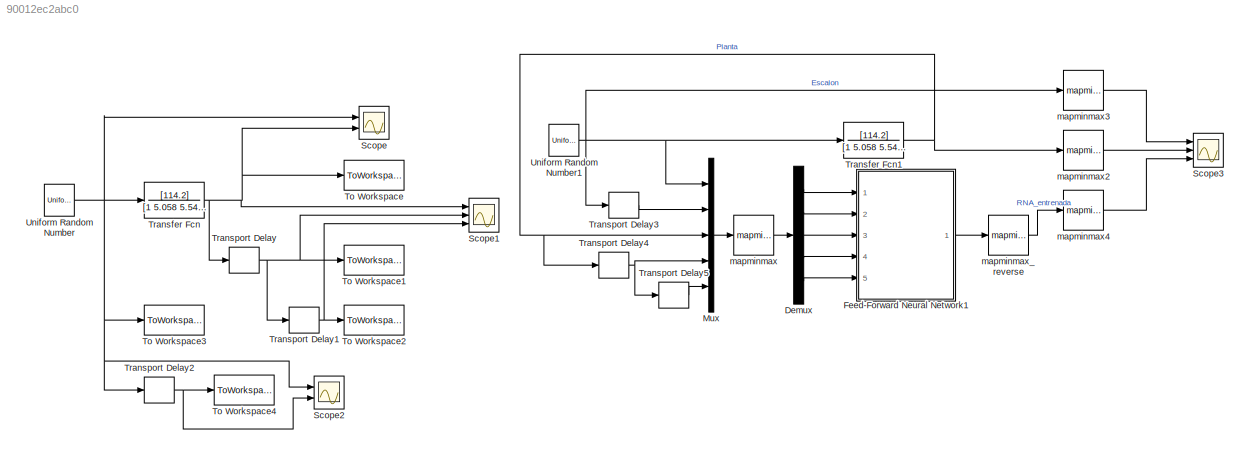
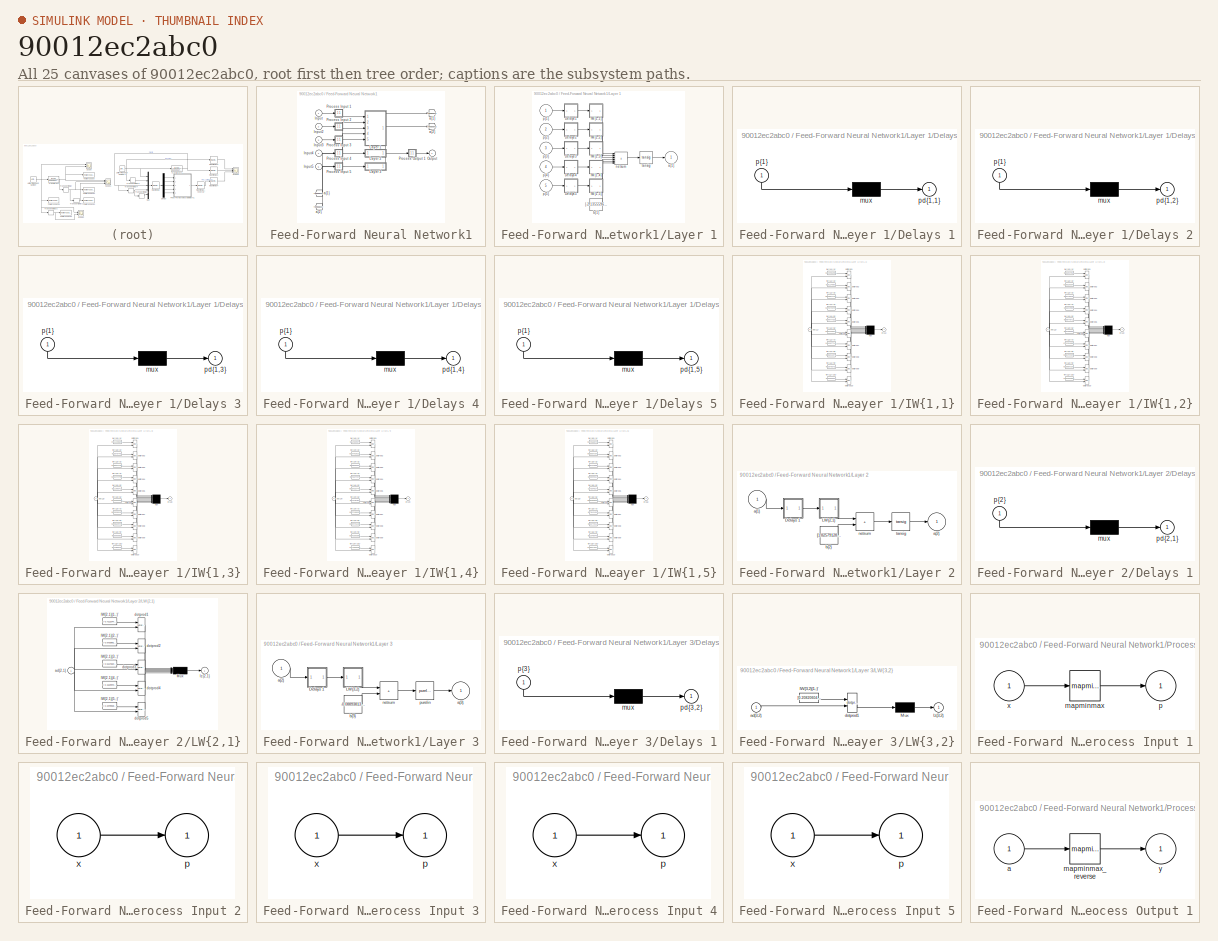
[diagram: thumbnail index - all 25 canvases of the model, root first then tree order]
MODEL slx_90012ec2abc0
KIND model
CONFIG AbsTol = auto
CONFIG EnableMultiTasking = off
CONFIG FixedStep = 0.1
CONFIG MaxStep = auto
CONFIG MinStep = auto
CONFIG RelTol = 1e-3
CONFIG SampleTimeConstraint = Unconstrained
CONFIG Solver = FixedStepAuto
CONFIG SolverName = FixedStepAuto
CONFIG StartTime = 0.0
CONFIG StopTime = 1500
BLOCK [Demux] Demux
  Outputs = 5
  Ports = [1, 5]
BLOCK [SubSystem] Feed-Forward Neural Network1
  Ports = [5, 1]
  RequestExecContextInheritance = off
BLOCK [From] Feed-Forward Neural Network1/ a{1} 
  GotoTag = feedback1
BLOCK [From] Feed-Forward Neural Network1/ a{2} 
  GotoTag = feedback2
BLOCK [Inport] Feed-Forward Neural Network1/Input
  PortDimensions = 1
BLOCK [Inport] Feed-Forward Neural Network1/Input2
  Port = 2
  PortDimensions = 1
BLOCK [Inport] Feed-Forward Neural Network1/Input3
  Port = 3
  PortDimensions = 1
BLOCK [Inport] Feed-Forward Neural Network1/Input4
  Port = 4
  PortDimensions = 1
BLOCK [Inport] Feed-Forward Neural Network1/Input5
  Port = 5
  PortDimensions = 1
BLOCK [SubSystem] Feed-Forward Neural Network1/Layer 1
  Ports = [5, 1]
  RequestExecContextInheritance = off
BLOCK [SubSystem] Feed-Forward Neural Network1/Layer 1/Delays 1
  Ports = [1, 1]
  RequestExecContextInheritance = off
BLOCK [Mux] Feed-Forward Neural Network1/Layer 1/Delays 1/mux
  Inputs = 1
  Ports = [1, 1]
BLOCK [Outport] Feed-Forward Neural Network1/Layer 1/Delays 1/pd{1,1}
BLOCK [Inport] Feed-Forward Neural Network1/Layer 1/Delays 1/p{1}
  NameLocation = left
  PortDimensions = 1
BLOCK [SubSystem] Feed-Forward Neural Network1/Layer 1/Delays 2
  Ports = [1, 1]
  RequestExecContextInheritance = off
BLOCK [Mux] Feed-Forward Neural Network1/Layer 1/Delays 2/mux
  Inputs = 1
  Ports = [1, 1]
BLOCK [Outport] Feed-Forward Neural Network1/Layer 1/Delays 2/pd{1,2}
BLOCK [Inport] Feed-Forward Neural Network1/Layer 1/Delays 2/p{1}
  NameLocation = left
  PortDimensions = 1
BLOCK [SubSystem] Feed-Forward Neural Network1/Layer 1/Delays 3
  Ports = [1, 1]
  RequestExecContextInheritance = off
BLOCK [Mux] Feed-Forward Neural Network1/Layer 1/Delays 3/mux
  Inputs = 1
  Ports = [1, 1]
BLOCK [Outport] Feed-Forward Neural Network1/Layer 1/Delays 3/pd{1,3}
BLOCK [Inport] Feed-Forward Neural Network1/Layer 1/Delays 3/p{1}
  NameLocation = left
  PortDimensions = 1
BLOCK [SubSystem] Feed-Forward Neural Network1/Layer 1/Delays 4
  Ports = [1, 1]
  RequestExecContextInheritance = off
BLOCK [Mux] Feed-Forward Neural Network1/Layer 1/Delays 4/mux
  Inputs = 1
  Ports = [1, 1]
BLOCK [Outport] Feed-Forward Neural Network1/Layer 1/Delays 4/pd{1,4}
BLOCK [Inport] Feed-Forward Neural Network1/Layer 1/Delays 4/p{1}
  NameLocation = left
  PortDimensions = 1
BLOCK [SubSystem] Feed-Forward Neural Network1/Layer 1/Delays 5
  Ports = [1, 1]
  RequestExecContextInheritance = off
BLOCK [Mux] Feed-Forward Neural Network1/Layer 1/Delays 5/mux
  Inputs = 1
  Ports = [1, 1]
BLOCK [Outport] Feed-Forward Neural Network1/Layer 1/Delays 5/pd{1,5}
BLOCK [Inport] Feed-Forward Neural Network1/Layer 1/Delays 5/p{1}
  NameLocation = left
  PortDimensions = 1
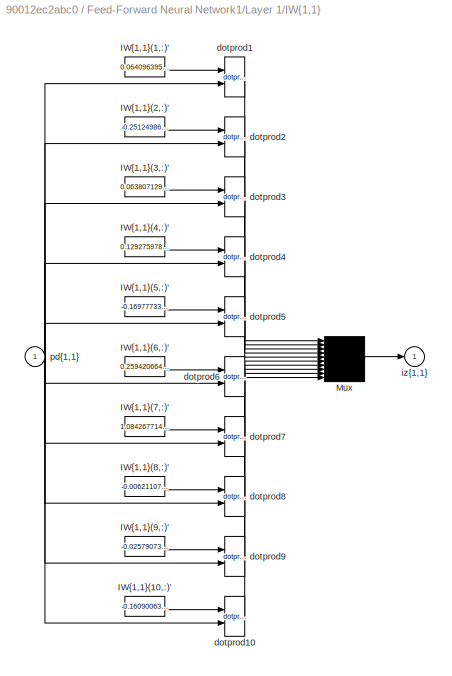
BLOCK [SubSystem] Feed-Forward Neural Network1/Layer 1/IW{1,1}
  Ports = [1, 1]
  RequestExecContextInheritance = off
BLOCK [Constant] Feed-Forward Neural Network1/Layer 1/IW{1,1}/IW{1,1}(1,:)'
  Value = 0.064096395795340266321460376275354065001010894775390625
BLOCK [Constant] Feed-Forward Neural Network1/Layer 1/IW{1,1}/IW{1,1}(10,:)'
  Value = -0.1609006380400649083295405716853565536439418792724609375
BLOCK [Constant] Feed-Forward Neural Network1/Layer 1/IW{1,1}/IW{1,1}(2,:)'
  Value = -0.25124986464909071504081339298863895237445831298828125
BLOCK [Constant] Feed-Forward Neural Network1/Layer 1/IW{1,1}/IW{1,1}(3,:)'
  Value = 0.0638071292988555971437136804524925537407398223876953125
BLOCK [Constant] Feed-Forward Neural Network1/Layer 1/IW{1,1}/IW{1,1}(4,:)'
  Value = 0.1292759788411202148683543100560200400650501251220703125
BLOCK [Constant] Feed-Forward Neural Network1/Layer 1/IW{1,1}/IW{1,1}(5,:)'
  Value = -0.16977733067755285123467956509557552635669708251953125
BLOCK [Constant] Feed-Forward Neural Network1/Layer 1/IW{1,1}/IW{1,1}(6,:)'
  Value = 0.259420664790711963387792593493941240012645721435546875
BLOCK [Constant] Feed-Forward Neural Network1/Layer 1/IW{1,1}/IW{1,1}(7,:)'
  Value = 1.084267714173177576952866729698143899440765380859375
BLOCK [Constant] Feed-Forward Neural Network1/Layer 1/IW{1,1}/IW{1,1}(8,:)'
  Value = -0.00621107591723416181672678959557742928154766559600830078125
BLOCK [Constant] Feed-Forward Neural Network1/Layer 1/IW{1,1}/IW{1,1}(9,:)'
  Value = -0.025790734084803527970120029522149707190692424774169921875
BLOCK [Mux] Feed-Forward Neural Network1/Layer 1/IW{1,1}/Mux
  Inputs = 10
  Ports = [10, 1]
BLOCK [Reference] Feed-Forward Neural Network1/Layer 1/IW{1,1}/dotprod1  REF=neural/Weight Functions/dotprod
  Ports = [2, 1]
  SourceBlock = neural/Weight Functions/dotprod
  SourceProductBaseCode = NN
  SourceType = DOTPROD
BLOCK [Reference] Feed-Forward Neural Network1/Layer 1/IW{1,1}/dotprod10  REF=neural/Weight Functions/dotprod
  Ports = [2, 1]
  SourceBlock = neural/Weight Functions/dotprod
  SourceProductBaseCode = NN
  SourceType = DOTPROD
BLOCK [Reference] Feed-Forward Neural Network1/Layer 1/IW{1,1}/dotprod2  REF=neural/Weight Functions/dotprod
  Ports = [2, 1]
  SourceBlock = neural/Weight Functions/dotprod
  SourceProductBaseCode = NN
  SourceType = DOTPROD
BLOCK [Reference] Feed-Forward Neural Network1/Layer 1/IW{1,1}/dotprod3  REF=neural/Weight Functions/dotprod
  Ports = [2, 1]
  SourceBlock = neural/Weight Functions/dotprod
  SourceProductBaseCode = NN
  SourceType = DOTPROD
BLOCK [Reference] Feed-Forward Neural Network1/Layer 1/IW{1,1}/dotprod4  REF=neural/Weight Functions/dotprod
  Ports = [2, 1]
  SourceBlock = neural/Weight Functions/dotprod
  SourceProductBaseCode = NN
  SourceType = DOTPROD
BLOCK [Reference] Feed-Forward Neural Network1/Layer 1/IW{1,1}/dotprod5  REF=neural/Weight Functions/dotprod
  Ports = [2, 1]
  SourceBlock = neural/Weight Functions/dotprod
  SourceProductBaseCode = NN
  SourceType = DOTPROD
BLOCK [Reference] Feed-Forward Neural Network1/Layer 1/IW{1,1}/dotprod6  REF=neural/Weight Functions/dotprod
  Ports = [2, 1]
  SourceBlock = neural/Weight Functions/dotprod
  SourceProductBaseCode = NN
  SourceType = DOTPROD
BLOCK [Reference] Feed-Forward Neural Network1/Layer 1/IW{1,1}/dotprod7  REF=neural/Weight Functions/dotprod
  Ports = [2, 1]
  SourceBlock = neural/Weight Functions/dotprod
  SourceProductBaseCode = NN
  SourceType = DOTPROD
BLOCK [Reference] Feed-Forward Neural Network1/Layer 1/IW{1,1}/dotprod8  REF=neural/Weight Functions/dotprod
  Ports = [2, 1]
  SourceBlock = neural/Weight Functions/dotprod
  SourceProductBaseCode = NN
  SourceType = DOTPROD
BLOCK [Reference] Feed-Forward Neural Network1/Layer 1/IW{1,1}/dotprod9  REF=neural/Weight Functions/dotprod
  Ports = [2, 1]
  SourceBlock = neural/Weight Functions/dotprod
  SourceProductBaseCode = NN
  SourceType = DOTPROD
BLOCK [Outport] Feed-Forward Neural Network1/Layer 1/IW{1,1}/iz{1,1}
BLOCK [Inport] Feed-Forward Neural Network1/Layer 1/IW{1,1}/pd{1,1}
  PortDimensions = 1
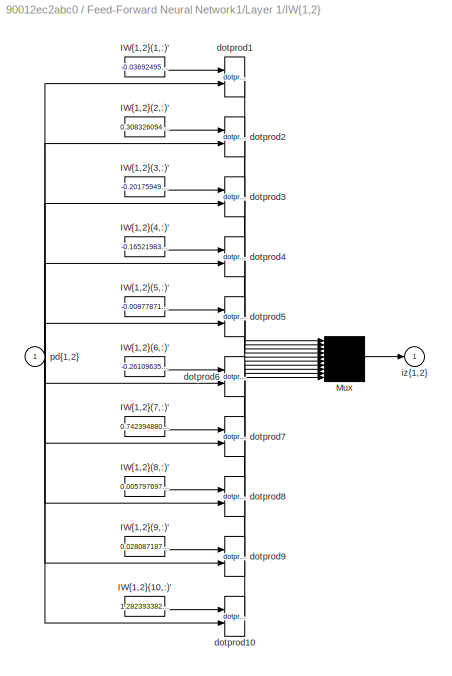
BLOCK [SubSystem] Feed-Forward Neural Network1/Layer 1/IW{1,2}
  Ports = [1, 1]
  RequestExecContextInheritance = off
BLOCK [Constant] Feed-Forward Neural Network1/Layer 1/IW{1,2}/IW{1,2}(1,:)'
  Value = -0.036924955750158645895186992902381462045013904571533203125
BLOCK [Constant] Feed-Forward Neural Network1/Layer 1/IW{1,2}/IW{1,2}(10,:)'
  Value = 1.2823933829601126266339861103915609419345855712890625
BLOCK [Constant] Feed-Forward Neural Network1/Layer 1/IW{1,2}/IW{1,2}(2,:)'
  Value = 0.308326094445494247597849835074157454073429107666015625
BLOCK [Constant] Feed-Forward Neural Network1/Layer 1/IW{1,2}/IW{1,2}(3,:)'
  Value = -0.2017594985392225093168150351630174554884433746337890625
BLOCK [Constant] Feed-Forward Neural Network1/Layer 1/IW{1,2}/IW{1,2}(4,:)'
  Value = -0.165219833233155311003059750873944722115993499755859375
BLOCK [Constant] Feed-Forward Neural Network1/Layer 1/IW{1,2}/IW{1,2}(5,:)'
  Value = -0.00877871315664167407855078550937832915224134922027587890625
BLOCK [Constant] Feed-Forward Neural Network1/Layer 1/IW{1,2}/IW{1,2}(6,:)'
  Value = -0.261096352376032958542140249846852384507656097412109375
BLOCK [Constant] Feed-Forward Neural Network1/Layer 1/IW{1,2}/IW{1,2}(7,:)'
  Value = 0.74239488081224169757632580513018183410167694091796875
BLOCK [Constant] Feed-Forward Neural Network1/Layer 1/IW{1,2}/IW{1,2}(8,:)'
  Value = 0.0057976977647169157525919302997863269411027431488037109375
BLOCK [Constant] Feed-Forward Neural Network1/Layer 1/IW{1,2}/IW{1,2}(9,:)'
  Value = 0.0280871871044160621722074466788399149663746356964111328125
BLOCK [Mux] Feed-Forward Neural Network1/Layer 1/IW{1,2}/Mux
  Inputs = 10
  Ports = [10, 1]
BLOCK [Reference] Feed-Forward Neural Network1/Layer 1/IW{1,2}/dotprod1  REF=neural/Weight Functions/dotprod
  Ports = [2, 1]
  SourceBlock = neural/Weight Functions/dotprod
  SourceProductBaseCode = NN
  SourceType = DOTPROD
BLOCK [Reference] Feed-Forward Neural Network1/Layer 1/IW{1,2}/dotprod10  REF=neural/Weight Functions/dotprod
  Ports = [2, 1]
  SourceBlock = neural/Weight Functions/dotprod
  SourceProductBaseCode = NN
  SourceType = DOTPROD
BLOCK [Reference] Feed-Forward Neural Network1/Layer 1/IW{1,2}/dotprod2  REF=neural/Weight Functions/dotprod
  Ports = [2, 1]
  SourceBlock = neural/Weight Functions/dotprod
  SourceProductBaseCode = NN
  SourceType = DOTPROD
BLOCK [Reference] Feed-Forward Neural Network1/Layer 1/IW{1,2}/dotprod3  REF=neural/Weight Functions/dotprod
  Ports = [2, 1]
  SourceBlock = neural/Weight Functions/dotprod
  SourceProductBaseCode = NN
  SourceType = DOTPROD
BLOCK [Reference] Feed-Forward Neural Network1/Layer 1/IW{1,2}/dotprod4  REF=neural/Weight Functions/dotprod
  Ports = [2, 1]
  SourceBlock = neural/Weight Functions/dotprod
  SourceProductBaseCode = NN
  SourceType = DOTPROD
BLOCK [Reference] Feed-Forward Neural Network1/Layer 1/IW{1,2}/dotprod5  REF=neural/Weight Functions/dotprod
  Ports = [2, 1]
  SourceBlock = neural/Weight Functions/dotprod
  SourceProductBaseCode = NN
  SourceType = DOTPROD
BLOCK [Reference] Feed-Forward Neural Network1/Layer 1/IW{1,2}/dotprod6  REF=neural/Weight Functions/dotprod
  Ports = [2, 1]
  SourceBlock = neural/Weight Functions/dotprod
  SourceProductBaseCode = NN
  SourceType = DOTPROD
BLOCK [Reference] Feed-Forward Neural Network1/Layer 1/IW{1,2}/dotprod7  REF=neural/Weight Functions/dotprod
  Ports = [2, 1]
  SourceBlock = neural/Weight Functions/dotprod
  SourceProductBaseCode = NN
  SourceType = DOTPROD
BLOCK [Reference] Feed-Forward Neural Network1/Layer 1/IW{1,2}/dotprod8  REF=neural/Weight Functions/dotprod
  Ports = [2, 1]
  SourceBlock = neural/Weight Functions/dotprod
  SourceProductBaseCode = NN
  SourceType = DOTPROD
BLOCK [Reference] Feed-Forward Neural Network1/Layer 1/IW{1,2}/dotprod9  REF=neural/Weight Functions/dotprod
  Ports = [2, 1]
  SourceBlock = neural/Weight Functions/dotprod
  SourceProductBaseCode = NN
  SourceType = DOTPROD
BLOCK [Outport] Feed-Forward Neural Network1/Layer 1/IW{1,2}/iz{1,2}
BLOCK [Inport] Feed-Forward Neural Network1/Layer 1/IW{1,2}/pd{1,2}
  PortDimensions = 1
BLOCK [SubSystem] Feed-Forward Neural Network1/Layer 1/IW{1,3}
  Ports = [1, 1]
  RequestExecContextInheritance = off
BLOCK [Constant] Feed-Forward Neural Network1/Layer 1/IW{1,3}/IW{1,3}(1,:)'
  Value = 0.411228584993159673732776582255610264837741851806640625
BLOCK [Constant] Feed-Forward Neural Network1/Layer 1/IW{1,3}/IW{1,3}(10,:)'
  Value = -0.7448661670569032278166332616820000112056732177734375
BLOCK [Constant] Feed-Forward Neural Network1/Layer 1/IW{1,3}/IW{1,3}(2,:)'
  Value = -0.1367974946488994536508698729448951780796051025390625
BLOCK [Constant] Feed-Forward Neural Network1/Layer 1/IW{1,3}/IW{1,3}(3,:)'
  Value = 1.2868107394406138599407540823449380695819854736328125
BLOCK [Constant] Feed-Forward Neural Network1/Layer 1/IW{1,3}/IW{1,3}(4,:)'
  Value = 0.181073798188619738969151740093366242945194244384765625
BLOCK [Constant] Feed-Forward Neural Network1/Layer 1/IW{1,3}/IW{1,3}(5,:)'
  Value = -0.2119834146910756500492567511173547245562076568603515625
BLOCK [Constant] Feed-Forward Neural Network1/Layer 1/IW{1,3}/IW{1,3}(6,:)'
  Value = 0.1269993067687715804225945248617790639400482177734375
BLOCK [Constant] Feed-Forward Neural Network1/Layer 1/IW{1,3}/IW{1,3}(7,:)'
  Value = 0.94303810092428219657989529878250323235988616943359375
BLOCK [Constant] Feed-Forward Neural Network1/Layer 1/IW{1,3}/IW{1,3}(8,:)'
  Value = 0.248569972883226630866460027391440235078334808349609375
BLOCK [Constant] Feed-Forward Neural Network1/Layer 1/IW{1,3}/IW{1,3}(9,:)'
  Value = -0.50595986401725234760107241527293808758258819580078125
BLOCK [Mux] Feed-Forward Neural Network1/Layer 1/IW{1,3}/Mux
  Inputs = 10
  Ports = [10, 1]
BLOCK [Reference] Feed-Forward Neural Network1/Layer 1/IW{1,3}/dotprod1  REF=neural/Weight Functions/dotprod
  Ports = [2, 1]
  SourceBlock = neural/Weight Functions/dotprod
  SourceProductBaseCode = NN
  SourceType = DOTPROD
BLOCK [Reference] Feed-Forward Neural Network1/Layer 1/IW{1,3}/dotprod10  REF=neural/Weight Functions/dotprod
  Ports = [2, 1]
  SourceBlock = neural/Weight Functions/dotprod
  SourceProductBaseCode = NN
  SourceType = DOTPROD
BLOCK [Reference] Feed-Forward Neural Network1/Layer 1/IW{1,3}/dotprod2  REF=neural/Weight Functions/dotprod
  Ports = [2, 1]
  SourceBlock = neural/Weight Functions/dotprod
  SourceProductBaseCode = NN
  SourceType = DOTPROD
BLOCK [Reference] Feed-Forward Neural Network1/Layer 1/IW{1,3}/dotprod3  REF=neural/Weight Functions/dotprod
  Ports = [2, 1]
  SourceBlock = neural/Weight Functions/dotprod
  SourceProductBaseCode = NN
  SourceType = DOTPROD
BLOCK [Reference] Feed-Forward Neural Network1/Layer 1/IW{1,3}/dotprod4  REF=neural/Weight Functions/dotprod
  Ports = [2, 1]
  SourceBlock = neural/Weight Functions/dotprod
  SourceProductBaseCode = NN
  SourceType = DOTPROD
BLOCK [Reference] Feed-Forward Neural Network1/Layer 1/IW{1,3}/dotprod5  REF=neural/Weight Functions/dotprod
  Ports = [2, 1]
  SourceBlock = neural/Weight Functions/dotprod
  SourceProductBaseCode = NN
  SourceType = DOTPROD
BLOCK [Reference] Feed-Forward Neural Network1/Layer 1/IW{1,3}/dotprod6  REF=neural/Weight Functions/dotprod
  Ports = [2, 1]
  SourceBlock = neural/Weight Functions/dotprod
  SourceProductBaseCode = NN
  SourceType = DOTPROD
BLOCK [Reference] Feed-Forward Neural Network1/Layer 1/IW{1,3}/dotprod7  REF=neural/Weight Functions/dotprod
  Ports = [2, 1]
  SourceBlock = neural/Weight Functions/dotprod
  SourceProductBaseCode = NN
  SourceType = DOTPROD
BLOCK [Reference] Feed-Forward Neural Network1/Layer 1/IW{1,3}/dotprod8  REF=neural/Weight Functions/dotprod
  Ports = [2, 1]
  SourceBlock = neural/Weight Functions/dotprod
  SourceProductBaseCode = NN
  SourceType = DOTPROD
BLOCK [Reference] Feed-Forward Neural Network1/Layer 1/IW{1,3}/dotprod9  REF=neural/Weight Functions/dotprod
  Ports = [2, 1]
  SourceBlock = neural/Weight Functions/dotprod
  SourceProductBaseCode = NN
  SourceType = DOTPROD
BLOCK [Outport] Feed-Forward Neural Network1/Layer 1/IW{1,3}/iz{1,3}
BLOCK [Inport] Feed-Forward Neural Network1/Layer 1/IW{1,3}/pd{1,3}
  PortDimensions = 1
BLOCK [SubSystem] Feed-Forward Neural Network1/Layer 1/IW{1,4}
  Ports = [1, 1]
  RequestExecContextInheritance = off
BLOCK [Constant] Feed-Forward Neural Network1/Layer 1/IW{1,4}/IW{1,4}(1,:)'
  Value = -0.11400937557237422748102062541875056922435760498046875
BLOCK [Constant] Feed-Forward Neural Network1/Layer 1/IW{1,4}/IW{1,4}(10,:)'
  Value = 1.217583035463341456505759197170846164226531982421875
BLOCK [Constant] Feed-Forward Neural Network1/Layer 1/IW{1,4}/IW{1,4}(2,:)'
  Value = 0.93475361931527645165118656223057769238948822021484375
BLOCK [Constant] Feed-Forward Neural Network1/Layer 1/IW{1,4}/IW{1,4}(3,:)'
  Value = -0.0083909369202884963312438770799417397938668727874755859375
BLOCK [Constant] Feed-Forward Neural Network1/Layer 1/IW{1,4}/IW{1,4}(4,:)'
  Value = -0.5466443408961836336601436414639465510845184326171875
BLOCK [Constant] Feed-Forward Neural Network1/Layer 1/IW{1,4}/IW{1,4}(5,:)'
  Value = 0.530420744119951326212003550608642399311065673828125
BLOCK [Constant] Feed-Forward Neural Network1/Layer 1/IW{1,4}/IW{1,4}(6,:)'
  Value = -0.372787820615392118117625841478002257645130157470703125
BLOCK [Constant] Feed-Forward Neural Network1/Layer 1/IW{1,4}/IW{1,4}(7,:)'
  Value = 0.9571389296425547588142990207416005432605743408203125
BLOCK [Constant] Feed-Forward Neural Network1/Layer 1/IW{1,4}/IW{1,4}(8,:)'
  Value = 0.00947613376675793782355494698776965378783643245697021484375
BLOCK [Constant] Feed-Forward Neural Network1/Layer 1/IW{1,4}/IW{1,4}(9,:)'
  Value = 0.08425508614366138127049765671472414396703243255615234375
BLOCK [Mux] Feed-Forward Neural Network1/Layer 1/IW{1,4}/Mux
  Inputs = 10
  Ports = [10, 1]
BLOCK [Reference] Feed-Forward Neural Network1/Layer 1/IW{1,4}/dotprod1  REF=neural/Weight Functions/dotprod
  Ports = [2, 1]
  SourceBlock = neural/Weight Functions/dotprod
  SourceProductBaseCode = NN
  SourceType = DOTPROD
BLOCK [Reference] Feed-Forward Neural Network1/Layer 1/IW{1,4}/dotprod10  REF=neural/Weight Functions/dotprod
  Ports = [2, 1]
  SourceBlock = neural/Weight Functions/dotprod
  SourceProductBaseCode = NN
  SourceType = DOTPROD
BLOCK [Reference] Feed-Forward Neural Network1/Layer 1/IW{1,4}/dotprod2  REF=neural/Weight Functions/dotprod
  Ports = [2, 1]
  SourceBlock = neural/Weight Functions/dotprod
  SourceProductBaseCode = NN
  SourceType = DOTPROD
BLOCK [Reference] Feed-Forward Neural Network1/Layer 1/IW{1,4}/dotprod3  REF=neural/Weight Functions/dotprod
  Ports = [2, 1]
  SourceBlock = neural/Weight Functions/dotprod
  SourceProductBaseCode = NN
  SourceType = DOTPROD
BLOCK [Reference] Feed-Forward Neural Network1/Layer 1/IW{1,4}/dotprod4  REF=neural/Weight Functions/dotprod
  Ports = [2, 1]
  SourceBlock = neural/Weight Functions/dotprod
  SourceProductBaseCode = NN
  SourceType = DOTPROD
BLOCK [Reference] Feed-Forward Neural Network1/Layer 1/IW{1,4}/dotprod5  REF=neural/Weight Functions/dotprod
  Ports = [2, 1]
  SourceBlock = neural/Weight Functions/dotprod
  SourceProductBaseCode = NN
  SourceType = DOTPROD
BLOCK [Reference] Feed-Forward Neural Network1/Layer 1/IW{1,4}/dotprod6  REF=neural/Weight Functions/dotprod
  Ports = [2, 1]
  SourceBlock = neural/Weight Functions/dotprod
  SourceProductBaseCode = NN
  SourceType = DOTPROD
BLOCK [Reference] Feed-Forward Neural Network1/Layer 1/IW{1,4}/dotprod7  REF=neural/Weight Functions/dotprod
  Ports = [2, 1]
  SourceBlock = neural/Weight Functions/dotprod
  SourceProductBaseCode = NN
  SourceType = DOTPROD
BLOCK [Reference] Feed-Forward Neural Network1/Layer 1/IW{1,4}/dotprod8  REF=neural/Weight Functions/dotprod
  Ports = [2, 1]
  SourceBlock = neural/Weight Functions/dotprod
  SourceProductBaseCode = NN
  SourceType = DOTPROD
BLOCK [Reference] Feed-Forward Neural Network1/Layer 1/IW{1,4}/dotprod9  REF=neural/Weight Functions/dotprod
  Ports = [2, 1]
  SourceBlock = neural/Weight Functions/dotprod
  SourceProductBaseCode = NN
  SourceType = DOTPROD
BLOCK [Outport] Feed-Forward Neural Network1/Layer 1/IW{1,4}/iz{1,4}
BLOCK [Inport] Feed-Forward Neural Network1/Layer 1/IW{1,4}/pd{1,4}
  PortDimensions = 1
BLOCK [SubSystem] Feed-Forward Neural Network1/Layer 1/IW{1,5}
  Ports = [1, 1]
  RequestExecContextInheritance = off
BLOCK [Constant] Feed-Forward Neural Network1/Layer 1/IW{1,5}/IW{1,5}(1,:)'
  Value = 0.372568072913042003246886224587797187268733978271484375
BLOCK [Constant] Feed-Forward Neural Network1/Layer 1/IW{1,5}/IW{1,5}(10,:)'
  Value = 0.4355148119408889240133930798037908971309661865234375
BLOCK [Constant] Feed-Forward Neural Network1/Layer 1/IW{1,5}/IW{1,5}(2,:)'
  Value = 0.60809739781374150258130839574732817709445953369140625
BLOCK [Constant] Feed-Forward Neural Network1/Layer 1/IW{1,5}/IW{1,5}(3,:)'
  Value = -0.89121598103204358043427646407508291304111480712890625
BLOCK [Constant] Feed-Forward Neural Network1/Layer 1/IW{1,5}/IW{1,5}(4,:)'
  Value = -0.238393517389238696058129107768763788044452667236328125
BLOCK [Constant] Feed-Forward Neural Network1/Layer 1/IW{1,5}/IW{1,5}(5,:)'
  Value = -1.17304927823672233699880962376482784748077392578125
BLOCK [Constant] Feed-Forward Neural Network1/Layer 1/IW{1,5}/IW{1,5}(6,:)'
  Value = 0.6869588923997056451042908520321361720561981201171875
BLOCK [Constant] Feed-Forward Neural Network1/Layer 1/IW{1,5}/IW{1,5}(7,:)'
  Value = -0.178124305396174076321358370478264987468719482421875
BLOCK [Constant] Feed-Forward Neural Network1/Layer 1/IW{1,5}/IW{1,5}(8,:)'
  Value = -0.02074921481069171014244290063288644887506961822509765625
BLOCK [Constant] Feed-Forward Neural Network1/Layer 1/IW{1,5}/IW{1,5}(9,:)'
  Value = -0.010489457289512761628547110603904002346098423004150390625
BLOCK [Mux] Feed-Forward Neural Network1/Layer 1/IW{1,5}/Mux
  Inputs = 10
  Ports = [10, 1]
BLOCK [Reference] Feed-Forward Neural Network1/Layer 1/IW{1,5}/dotprod1  REF=neural/Weight Functions/dotprod
  Ports = [2, 1]
  SourceBlock = neural/Weight Functions/dotprod
  SourceProductBaseCode = NN
  SourceType = DOTPROD
BLOCK [Reference] Feed-Forward Neural Network1/Layer 1/IW{1,5}/dotprod10  REF=neural/Weight Functions/dotprod
  Ports = [2, 1]
  SourceBlock = neural/Weight Functions/dotprod
  SourceProductBaseCode = NN
  SourceType = DOTPROD
BLOCK [Reference] Feed-Forward Neural Network1/Layer 1/IW{1,5}/dotprod2  REF=neural/Weight Functions/dotprod
  Ports = [2, 1]
  SourceBlock = neural/Weight Functions/dotprod
  SourceProductBaseCode = NN
  SourceType = DOTPROD
BLOCK [Reference] Feed-Forward Neural Network1/Layer 1/IW{1,5}/dotprod3  REF=neural/Weight Functions/dotprod
  Ports = [2, 1]
  SourceBlock = neural/Weight Functions/dotprod
  SourceProductBaseCode = NN
  SourceType = DOTPROD
BLOCK [Reference] Feed-Forward Neural Network1/Layer 1/IW{1,5}/dotprod4  REF=neural/Weight Functions/dotprod
  Ports = [2, 1]
  SourceBlock = neural/Weight Functions/dotprod
  SourceProductBaseCode = NN
  SourceType = DOTPROD
BLOCK [Reference] Feed-Forward Neural Network1/Layer 1/IW{1,5}/dotprod5  REF=neural/Weight Functions/dotprod
  Ports = [2, 1]
  SourceBlock = neural/Weight Functions/dotprod
  SourceProductBaseCode = NN
  SourceType = DOTPROD
BLOCK [Reference] Feed-Forward Neural Network1/Layer 1/IW{1,5}/dotprod6  REF=neural/Weight Functions/dotprod
  Ports = [2, 1]
  SourceBlock = neural/Weight Functions/dotprod
  SourceProductBaseCode = NN
  SourceType = DOTPROD
BLOCK [Reference] Feed-Forward Neural Network1/Layer 1/IW{1,5}/dotprod7  REF=neural/Weight Functions/dotprod
  Ports = [2, 1]
  SourceBlock = neural/Weight Functions/dotprod
  SourceProductBaseCode = NN
  SourceType = DOTPROD
BLOCK [Reference] Feed-Forward Neural Network1/Layer 1/IW{1,5}/dotprod8  REF=neural/Weight Functions/dotprod
  Ports = [2, 1]
  SourceBlock = neural/Weight Functions/dotprod
  SourceProductBaseCode = NN
  SourceType = DOTPROD
BLOCK [Reference] Feed-Forward Neural Network1/Layer 1/IW{1,5}/dotprod9  REF=neural/Weight Functions/dotprod
  Ports = [2, 1]
  SourceBlock = neural/Weight Functions/dotprod
  SourceProductBaseCode = NN
  SourceType = DOTPROD
BLOCK [Outport] Feed-Forward Neural Network1/Layer 1/IW{1,5}/iz{1,5}
BLOCK [Inport] Feed-Forward Neural Network1/Layer 1/IW{1,5}/pd{1,5}
  PortDimensions = 1
BLOCK [Outport] Feed-Forward Neural Network1/Layer 1/a{1}
  InitialOutput = [0;0;0;0;0;0;0;0;0;0]
BLOCK [Constant] Feed-Forward Neural Network1/Layer 1/b{1}
  Value = [-2.135559638640775137474747680244036018848419189453125;2.214847061055172705579252578900195658206939697265625;-1.834076135010637376154818412032909691333770751953125;-0.75094585900457477833924713195301592350006103515625;0.175997332329993094734987835181527771055698394775390625;-0.3824999854096227114297334992443211376667022705078125;0.51669158556298822038144180623930878937244415283203125;-0.482094849...<+155ch>
BLOCK [Sum] Feed-Forward Neural Network1/Layer 1/netsum
  IconShape = rectangular
  InputSameDT = on
  Inputs = 6
  OutDataTypeStr = Inherit: Same as first input
  Ports = [6, 1]
  SaturateOnIntegerOverflow = on
BLOCK [Inport] Feed-Forward Neural Network1/Layer 1/p{1}
  PortDimensions = 1
BLOCK [Inport] Feed-Forward Neural Network1/Layer 1/p{2}
  Port = 2
  PortDimensions = 1
BLOCK [Inport] Feed-Forward Neural Network1/Layer 1/p{3}
  Port = 3
  PortDimensions = 1
BLOCK [Inport] Feed-Forward Neural Network1/Layer 1/p{4}
  Port = 4
  PortDimensions = 1
BLOCK [Inport] Feed-Forward Neural Network1/Layer 1/p{5}
  Port = 5
  PortDimensions = 1
BLOCK [Reference] Feed-Forward Neural Network1/Layer 1/tansig  REF=neural/Transfer Functions/tansig
  Ports = [1, 1]
  SourceBlock = neural/Transfer Functions/tansig
  SourceProductBaseCode = NN
  SourceType = TANSIG
BLOCK [SubSystem] Feed-Forward Neural Network1/Layer 2
  Ports = [1, 1]
  RequestExecContextInheritance = off
BLOCK [SubSystem] Feed-Forward Neural Network1/Layer 2/Delays 1
  Ports = [1, 1]
  RequestExecContextInheritance = off
BLOCK [Mux] Feed-Forward Neural Network1/Layer 2/Delays 1/mux
  Inputs = 1
  Ports = [1, 1]
BLOCK [Outport] Feed-Forward Neural Network1/Layer 2/Delays 1/pd{2,1}
BLOCK [Inport] Feed-Forward Neural Network1/Layer 2/Delays 1/p{2}
  NameLocation = left
  PortDimensions = 10
BLOCK [SubSystem] Feed-Forward Neural Network1/Layer 2/LW{2,1}
  Ports = [1, 1]
  RequestExecContextInheritance = off
BLOCK [Constant] Feed-Forward Neural Network1/Layer 2/LW{2,1}/IW{2,1}(1,:)'
  Value = [-0.711104777875947835497072446742095053195953369140625;-0.387928900270149312756728932072292082011699676513671875;-0.0700277018905961778916235971337300725281238555908203125;-0.8765026639848019218703711885609664022922515869140625;0.066025130612206772706684887452865950763225555419921875;-0.01558092535127533588557025012732992763631045818328857421875;0.0227157409551376823775292734808317618444561958312...<+176ch>
BLOCK [Constant] Feed-Forward Neural Network1/Layer 2/LW{2,1}/IW{2,1}(2,:)'
  Value = [-0.67339511687684716623181202521664090454578399658203125;-0.06449982795464946627728153316638781689107418060302734375;1.0027470663727549027299801309709437191486358642578125;-0.04626675892220576125080100382547243498265743255615234375;0.0788959041768354796264617334600188769400119781494140625;-0.197072654713995820685568105545826256275177001953125;-0.000134098675654156676388673030686504716868512332439...<+186ch>
BLOCK [Constant] Feed-Forward Neural Network1/Layer 2/LW{2,1}/IW{2,1}(3,:)'
  Value = [-0.5117520519008225132751022101729176938533782958984375;0.445944284190483930530035650008358061313629150390625;-0.0757763527559609240125126916609588079154491424560546875;0.11818094428103893822612491248946753330528736114501953125;0.2152522049444194618406100971697014756500720977783203125;-0.4120429165148544736752000972046516835689544677734375;1.4335018832932045930038562897568255039004725404083728790...<+183ch>
BLOCK [Constant] Feed-Forward Neural Network1/Layer 2/LW{2,1}/IW{2,1}(4,:)'
  Value = [-0.15199702774224732593211228959262371063232421875;0.06726743170470710075914411163466866128146648406982421875;-0.431776436855269618586561364281806163489818572998046875;0.0704565546151738331115410574057023040950298309326171875;-0.01371236710107421631621438251613653847016394138336181640625;0.0247673069064754634849290226839002571068704128265380859375;7.47925436963901808318580521905971636442700400948...<+193ch>
BLOCK [Constant] Feed-Forward Neural Network1/Layer 2/LW{2,1}/IW{2,1}(5,:)'
  Value = [-0.20499284301960474241610654644318856298923492431640625;-0.60403444674460693430972924033994786441326141357421875;-0.75998356360859842251187501460663042962551116943359375;0.40726808510928591555710909233312122523784637451171875;0.3531760217370283339022307700361125171184539794921875;-0.2316547425319166741974896694955532439053058624267578125;0.5274448002817051506241341485292650759220123291015625;-0....<+163ch>
BLOCK [Mux] Feed-Forward Neural Network1/Layer 2/LW{2,1}/Mux
  Inputs = 5
  Ports = [5, 1]
BLOCK [Inport] Feed-Forward Neural Network1/Layer 2/LW{2,1}/ad{2,1}
  PortDimensions = 10
BLOCK [Reference] Feed-Forward Neural Network1/Layer 2/LW{2,1}/dotprod1  REF=neural/Weight Functions/dotprod
  Ports = [2, 1]
  SourceBlock = neural/Weight Functions/dotprod
  SourceProductBaseCode = NN
  SourceType = DOTPROD
BLOCK [Reference] Feed-Forward Neural Network1/Layer 2/LW{2,1}/dotprod2  REF=neural/Weight Functions/dotprod
  Ports = [2, 1]
  SourceBlock = neural/Weight Functions/dotprod
  SourceProductBaseCode = NN
  SourceType = DOTPROD
BLOCK [Reference] Feed-Forward Neural Network1/Layer 2/LW{2,1}/dotprod3  REF=neural/Weight Functions/dotprod
  Ports = [2, 1]
  SourceBlock = neural/Weight Functions/dotprod
  SourceProductBaseCode = NN
  SourceType = DOTPROD
BLOCK [Reference] Feed-Forward Neural Network1/Layer 2/LW{2,1}/dotprod4  REF=neural/Weight Functions/dotprod
  Ports = [2, 1]
  SourceBlock = neural/Weight Functions/dotprod
  SourceProductBaseCode = NN
  SourceType = DOTPROD
BLOCK [Reference] Feed-Forward Neural Network1/Layer 2/LW{2,1}/dotprod5  REF=neural/Weight Functions/dotprod
  Ports = [2, 1]
  SourceBlock = neural/Weight Functions/dotprod
  SourceProductBaseCode = NN
  SourceType = DOTPROD
BLOCK [Outport] Feed-Forward Neural Network1/Layer 2/LW{2,1}/lz{2,1}
BLOCK [Inport] Feed-Forward Neural Network1/Layer 2/a{1} 
  PortDimensions = 10
BLOCK [Outport] Feed-Forward Neural Network1/Layer 2/a{2}
  InitialOutput = [0;0;0;0;0]
BLOCK [Constant] Feed-Forward Neural Network1/Layer 2/b{2}
  Value = [1.8257912855161888554533788919798098504543304443359375;0.628900464076945109326288729789666831493377685546875;-0.1419684344195878689109946435564779676496982574462890625;-0.40200151541256357035081236972473561763763427734375;-1.6541022330597972000987283536233007907867431640625]
BLOCK [Sum] Feed-Forward Neural Network1/Layer 2/netsum
  IconShape = rectangular
  InputSameDT = on
  Inputs = 2
  OutDataTypeStr = Inherit: Same as first input
  Ports = [2, 1]
  SaturateOnIntegerOverflow = on
BLOCK [Reference] Feed-Forward Neural Network1/Layer 2/tansig  REF=neural/Transfer Functions/tansig
  Ports = [1, 1]
  SourceBlock = neural/Transfer Functions/tansig
  SourceProductBaseCode = NN
  SourceType = TANSIG
BLOCK [SubSystem] Feed-Forward Neural Network1/Layer 3
  Ports = [1, 1]
  RequestExecContextInheritance = off
BLOCK [SubSystem] Feed-Forward Neural Network1/Layer 3/Delays 1
  Ports = [1, 1]
  RequestExecContextInheritance = off
BLOCK [Mux] Feed-Forward Neural Network1/Layer 3/Delays 1/mux
  Inputs = 1
  Ports = [1, 1]
BLOCK [Outport] Feed-Forward Neural Network1/Layer 3/Delays 1/pd{3,2}
BLOCK [Inport] Feed-Forward Neural Network1/Layer 3/Delays 1/p{3}
  NameLocation = left
  PortDimensions = 5
BLOCK [SubSystem] Feed-Forward Neural Network1/Layer 3/LW{3,2}
  Ports = [1, 1]
  RequestExecContextInheritance = off
BLOCK [Constant] Feed-Forward Neural Network1/Layer 3/LW{3,2}/IW{3,2}(1,:)'
  Value = [0.2082060466839234236235967046013684011995792388916015625;-1.1565030556056676847020980858360417187213897705078125;0.28416041044478002053352838629507459700107574462890625;-2.756200301751678072292861543246544897556304931640625;7.3722172355971166590911380911421701966901309788227081298828125e-05]
BLOCK [Mux] Feed-Forward Neural Network1/Layer 3/LW{3,2}/Mux
  Inputs = 1
  Ports = [1, 1]
BLOCK [Inport] Feed-Forward Neural Network1/Layer 3/LW{3,2}/ad{3,2}
  PortDimensions = 5
BLOCK [Reference] Feed-Forward Neural Network1/Layer 3/LW{3,2}/dotprod1  REF=neural/Weight Functions/dotprod
  Ports = [2, 1]
  SourceBlock = neural/Weight Functions/dotprod
  SourceProductBaseCode = NN
  SourceType = DOTPROD
BLOCK [Outport] Feed-Forward Neural Network1/Layer 3/LW{3,2}/lz{3,2}
BLOCK [Inport] Feed-Forward Neural Network1/Layer 3/a{2} 
  PortDimensions = 5
BLOCK [Outport] Feed-Forward Neural Network1/Layer 3/a{3}
  InitialOutput = 0
BLOCK [Constant] Feed-Forward Neural Network1/Layer 3/b{3}
  Value = -0.0889381395077633862822352739385678432881832122802734375
BLOCK [Sum] Feed-Forward Neural Network1/Layer 3/netsum
  IconShape = rectangular
  InputSameDT = on
  Inputs = 2
  OutDataTypeStr = Inherit: Same as first input
  Ports = [2, 1]
  SaturateOnIntegerOverflow = on
BLOCK [Reference] Feed-Forward Neural Network1/Layer 3/purelin  REF=neural/Transfer Functions/purelin
  Ports = [1, 1]
  SourceBlock = neural/Transfer Functions/purelin
  SourceProductBaseCode = NN
  SourceType = PURELIN
BLOCK [Outport] Feed-Forward Neural Network1/Output
  InitialOutput = 0
BLOCK [SubSystem] Feed-Forward Neural Network1/Process Input 1
  Ports = [1, 1]
  RequestExecContextInheritance = off
BLOCK [Reference] Feed-Forward Neural Network1/Process Input 1/mapminmax  REF=neural/Processing Functions/mapminmax
  Ports = [1, 1]
  SourceBlock = neural/Processing Functions/mapminmax
  SourceProductBaseCode = NN
  SourceType = MAPMINMAX Preprocess
BLOCK [Outport] Feed-Forward Neural Network1/Process Input 1/p
  PortDimensions = 1
BLOCK [Inport] Feed-Forward Neural Network1/Process Input 1/x
  PortDimensions = 1
BLOCK [SubSystem] Feed-Forward Neural Network1/Process Input 2
  Ports = [1, 1]
  RequestExecContextInheritance = off
BLOCK [Outport] Feed-Forward Neural Network1/Process Input 2/p
  PortDimensions = 1
BLOCK [Inport] Feed-Forward Neural Network1/Process Input 2/x
  PortDimensions = 1
BLOCK [SubSystem] Feed-Forward Neural Network1/Process Input 3
  Ports = [1, 1]
  RequestExecContextInheritance = off
BLOCK [Outport] Feed-Forward Neural Network1/Process Input 3/p
  PortDimensions = 1
BLOCK [Inport] Feed-Forward Neural Network1/Process Input 3/x
  PortDimensions = 1
BLOCK [SubSystem] Feed-Forward Neural Network1/Process Input 4
  Ports = [1, 1]
  RequestExecContextInheritance = off
BLOCK [Outport] Feed-Forward Neural Network1/Process Input 4/p
  PortDimensions = 1
BLOCK [Inport] Feed-Forward Neural Network1/Process Input 4/x
  PortDimensions = 1
BLOCK [SubSystem] Feed-Forward Neural Network1/Process Input 5
  Ports = [1, 1]
  RequestExecContextInheritance = off
BLOCK [Outport] Feed-Forward Neural Network1/Process Input 5/p
  PortDimensions = 1
BLOCK [Inport] Feed-Forward Neural Network1/Process Input 5/x
  PortDimensions = 1
BLOCK [SubSystem] Feed-Forward Neural Network1/Process Output 1
  Ports = [1, 1]
  RequestExecContextInheritance = off
BLOCK [Inport] Feed-Forward Neural Network1/Process Output 1/a
  PortDimensions = 1
BLOCK [Reference] Feed-Forward Neural Network1/Process Output 1/mapminmax_reverse  REF=neural/Processing Functions/mapminmax_reverse
  Ports = [1, 1]
  SourceBlock = neural/Processing Functions/mapminmax_reverse
  SourceProductBaseCode = NN
  SourceType = MAPMINMAX Reverse Process
BLOCK [Outport] Feed-Forward Neural Network1/Process Output 1/y
  PortDimensions = 1
BLOCK [Goto] Feed-Forward Neural Network1/a{1}
  GotoTag = feedback1
BLOCK [Goto] Feed-Forward Neural Network1/a{2}
  GotoTag = feedback2
BLOCK [Mux] Mux
  DisplayOption = bar
  Inputs = 5
  Ports = [5, 1]
BLOCK [Scope] Scope
  Floating = off
  NumInputPorts = 2
  Ports = [2]
  ScopeSpecificationString = Simulink.scopes.TimeScopeBlockCfg('CurrentConfiguration', extmgr.ConfigurationSet(extmgr.Configuration('Core','General UI',true),extmgr.Configuration('Core','Source UI',true),extmgr.Configuration('Sources','WiredSimulink',true),extmgr.Configuration('Visuals','Time Domain',true,'SerializedDisplays',{struct('MinYLimReal','-120.50312','MaxYLimReal','1084.52811','YLabelReal','','MinYLimMag',' 0.00000'...<+1403ch>
BLOCK [Scope] Scope1
  Floating = off
  NumInputPorts = 3
  Ports = [3]
  ScopeSpecificationString = Simulink.scopes.TimeScopeBlockCfg('CurrentConfiguration', extmgr.ConfigurationSet(extmgr.Configuration('Core','General UI',true),extmgr.Configuration('Core','Source UI',true),extmgr.Configuration('Sources','WiredSimulink',true,'DataLoggingVariableName','ScopeData1'),extmgr.Configuration('Visuals','Time Domain',true,'SerializedDisplays',{struct('MinYLimReal','-14.292','MaxYLimReal','54.63692','YLab...<+1439ch>
BLOCK [Scope] Scope2
  Floating = off
  NumInputPorts = 2
  Ports = [2]
  ScopeSpecificationString = Simulink.scopes.TimeScopeBlockCfg('CurrentConfiguration', extmgr.ConfigurationSet(extmgr.Configuration('Core','General UI',true),extmgr.Configuration('Core','Source UI',true),extmgr.Configuration('Sources','WiredSimulink',true,'DataLoggingVariableName','ScopeData2'),extmgr.Configuration('Visuals','Time Domain',true,'SerializedDisplays',{struct('MinYLimReal','-16.97631','MaxYLimReal','57.40567','YL...<+1434ch>
BLOCK [Scope] Scope3
  Floating = off
  NumInputPorts = 3
  Ports = [3]
  ScopeSpecificationString = Simulink.scopes.TimeScopeBlockCfg('CurrentConfiguration', extmgr.ConfigurationSet(extmgr.Configuration('Core','General UI',true),extmgr.Configuration('Core','Source UI',true),extmgr.Configuration('Sources','WiredSimulink',true,'DataLoggingVariableName','ScopeData1'),extmgr.Configuration('Visuals','Time Domain',true,'SerializedDisplays',{struct('MinYLimReal','-0.125','MaxYLimReal','1.125','YLabelRe...<+1477ch>
BLOCK [ToWorkspace] To Workspace
  MaxDataPoints = inf
  Ports = [1]
  SampleTime = 0.1
  VariableName = S
BLOCK [ToWorkspace] To Workspace1
  MaxDataPoints = inf
  Ports = [1]
  SampleTime = 0.1
  VariableName = S1
BLOCK [ToWorkspace] To Workspace2
  MaxDataPoints = inf
  Ports = [1]
  SampleTime = 0.1
  VariableName = S2
BLOCK [ToWorkspace] To Workspace3
  MaxDataPoints = inf
  Ports = [1]
  SampleTime = 0.1
  VariableName = U
BLOCK [ToWorkspace] To Workspace4
  MaxDataPoints = inf
  Ports = [1]
  SampleTime = 0.1
  VariableName = U1
BLOCK [TransferFcn] Transfer Fcn
  Denominator = [1 5.058 5.544]
  Numerator = [114.2]
BLOCK [TransferFcn] Transfer Fcn1
  Denominator = [1 5.058 5.544]
  Numerator = [114.2]
BLOCK [TransportDelay] Transport Delay
  DelayTime = 0.1
  Ports = [1, 1]
BLOCK [TransportDelay] Transport Delay1
  DelayTime = 0.1
  Ports = [1, 1]
BLOCK [TransportDelay] Transport Delay2
  DelayTime = 0.1
  Ports = [1, 1]
BLOCK [TransportDelay] Transport Delay3
  DelayTime = 0.1
  Ports = [1, 1]
BLOCK [TransportDelay] Transport Delay4
  DelayTime = 0.1
  Ports = [1, 1]
BLOCK [TransportDelay] Transport Delay5
  DelayTime = 0.1
  Ports = [1, 1]
BLOCK [UniformRandomNumber] Uniform Random Number
  Maximum = 50
  Minimum = 1
  SampleTime = 50
BLOCK [UniformRandomNumber] Uniform Random Number1
  Maximum = 50
  Minimum = 1
  SampleTime = 50
BLOCK [Reference] mapminmax  REF=neural/Processing Functions/mapminmax
  Ports = [1, 1]
  SourceBlock = neural/Processing Functions/mapminmax
  SourceProductBaseCode = NN
  SourceType = MAPMINMAX Preprocess
BLOCK [Reference] mapminmax2  REF=neural/Processing Functions/mapminmax
  Ports = [1, 1]
  SourceBlock = neural/Processing Functions/mapminmax
  SourceProductBaseCode = NN
  SourceType = MAPMINMAX Preprocess
BLOCK [Reference] mapminmax3  REF=neural/Processing Functions/mapminmax
  Ports = [1, 1]
  SourceBlock = neural/Processing Functions/mapminmax
  SourceProductBaseCode = NN
  SourceType = MAPMINMAX Preprocess
BLOCK [Reference] mapminmax4  REF=neural/Processing Functions/mapminmax
  Ports = [1, 1]
  SourceBlock = neural/Processing Functions/mapminmax
  SourceProductBaseCode = NN
  SourceType = MAPMINMAX Preprocess
BLOCK [Reference] mapminmax_reverse  REF=neural/Processing Functions/mapminmax_reverse
  Ports = [1, 1]
  SourceBlock = neural/Processing Functions/mapminmax_reverse
  SourceProductBaseCode = NN
  SourceType = MAPMINMAX Reverse Process
LINE Demux:1 -> Feed-Forward Neural Network1:1
LINE Demux:2 -> Feed-Forward Neural Network1:2
LINE Demux:3 -> Feed-Forward Neural Network1:3
LINE Demux:4 -> Feed-Forward Neural Network1:4
LINE Demux:5 -> Feed-Forward Neural Network1:5
LINE Feed-Forward Neural Network1/ a{1} :1 -> Feed-Forward Neural Network1/Layer 2:1
LINE Feed-Forward Neural Network1/ a{2} :1 -> Feed-Forward Neural Network1/Layer 3:1
LINE Feed-Forward Neural Network1/Input2:1 -> Feed-Forward Neural Network1/Process Input 2:1
LINE Feed-Forward Neural Network1/Input3:1 -> Feed-Forward Neural Network1/Process Input 3:1
LINE Feed-Forward Neural Network1/Input4:1 -> Feed-Forward Neural Network1/Process Input 4:1
LINE Feed-Forward Neural Network1/Input5:1 -> Feed-Forward Neural Network1/Process Input 5:1
LINE Feed-Forward Neural Network1/Input:1 -> Feed-Forward Neural Network1/Process Input 1:1
LINE Feed-Forward Neural Network1/Layer 1/Delays 1/mux:1 -> Feed-Forward Neural Network1/Layer 1/Delays 1/pd{1,1}:1
LINE Feed-Forward Neural Network1/Layer 1/Delays 1/p{1}:1 -> Feed-Forward Neural Network1/Layer 1/Delays 1/mux:1
LINE Feed-Forward Neural Network1/Layer 1/Delays 1:1 -> Feed-Forward Neural Network1/Layer 1/IW{1,1}:1
LINE Feed-Forward Neural Network1/Layer 1/Delays 2/mux:1 -> Feed-Forward Neural Network1/Layer 1/Delays 2/pd{1,2}:1
LINE Feed-Forward Neural Network1/Layer 1/Delays 2/p{1}:1 -> Feed-Forward Neural Network1/Layer 1/Delays 2/mux:1
LINE Feed-Forward Neural Network1/Layer 1/Delays 2:1 -> Feed-Forward Neural Network1/Layer 1/IW{1,2}:1
LINE Feed-Forward Neural Network1/Layer 1/Delays 3/mux:1 -> Feed-Forward Neural Network1/Layer 1/Delays 3/pd{1,3}:1
LINE Feed-Forward Neural Network1/Layer 1/Delays 3/p{1}:1 -> Feed-Forward Neural Network1/Layer 1/Delays 3/mux:1
LINE Feed-Forward Neural Network1/Layer 1/Delays 3:1 -> Feed-Forward Neural Network1/Layer 1/IW{1,3}:1
LINE Feed-Forward Neural Network1/Layer 1/Delays 4/mux:1 -> Feed-Forward Neural Network1/Layer 1/Delays 4/pd{1,4}:1
LINE Feed-Forward Neural Network1/Layer 1/Delays 4/p{1}:1 -> Feed-Forward Neural Network1/Layer 1/Delays 4/mux:1
LINE Feed-Forward Neural Network1/Layer 1/Delays 4:1 -> Feed-Forward Neural Network1/Layer 1/IW{1,4}:1
LINE Feed-Forward Neural Network1/Layer 1/Delays 5/mux:1 -> Feed-Forward Neural Network1/Layer 1/Delays 5/pd{1,5}:1
LINE Feed-Forward Neural Network1/Layer 1/Delays 5/p{1}:1 -> Feed-Forward Neural Network1/Layer 1/Delays 5/mux:1
LINE Feed-Forward Neural Network1/Layer 1/Delays 5:1 -> Feed-Forward Neural Network1/Layer 1/IW{1,5}:1
LINE Feed-Forward Neural Network1/Layer 1/IW{1,1}/IW{1,1}(1,:)':1 -> Feed-Forward Neural Network1/Layer 1/IW{1,1}/dotprod1:1
LINE Feed-Forward Neural Network1/Layer 1/IW{1,1}/IW{1,1}(10,:)':1 -> Feed-Forward Neural Network1/Layer 1/IW{1,1}/dotprod10:1
LINE Feed-Forward Neural Network1/Layer 1/IW{1,1}/IW{1,1}(2,:)':1 -> Feed-Forward Neural Network1/Layer 1/IW{1,1}/dotprod2:1
LINE Feed-Forward Neural Network1/Layer 1/IW{1,1}/IW{1,1}(3,:)':1 -> Feed-Forward Neural Network1/Layer 1/IW{1,1}/dotprod3:1
LINE Feed-Forward Neural Network1/Layer 1/IW{1,1}/IW{1,1}(4,:)':1 -> Feed-Forward Neural Network1/Layer 1/IW{1,1}/dotprod4:1
LINE Feed-Forward Neural Network1/Layer 1/IW{1,1}/IW{1,1}(5,:)':1 -> Feed-Forward Neural Network1/Layer 1/IW{1,1}/dotprod5:1
LINE Feed-Forward Neural Network1/Layer 1/IW{1,1}/IW{1,1}(6,:)':1 -> Feed-Forward Neural Network1/Layer 1/IW{1,1}/dotprod6:1
LINE Feed-Forward Neural Network1/Layer 1/IW{1,1}/IW{1,1}(7,:)':1 -> Feed-Forward Neural Network1/Layer 1/IW{1,1}/dotprod7:1
LINE Feed-Forward Neural Network1/Layer 1/IW{1,1}/IW{1,1}(8,:)':1 -> Feed-Forward Neural Network1/Layer 1/IW{1,1}/dotprod8:1
LINE Feed-Forward Neural Network1/Layer 1/IW{1,1}/IW{1,1}(9,:)':1 -> Feed-Forward Neural Network1/Layer 1/IW{1,1}/dotprod9:1
LINE Feed-Forward Neural Network1/Layer 1/IW{1,1}/Mux:1 -> Feed-Forward Neural Network1/Layer 1/IW{1,1}/iz{1,1}:1
LINE Feed-Forward Neural Network1/Layer 1/IW{1,1}/dotprod10:1 -> Feed-Forward Neural Network1/Layer 1/IW{1,1}/Mux:10
LINE Feed-Forward Neural Network1/Layer 1/IW{1,1}/dotprod1:1 -> Feed-Forward Neural Network1/Layer 1/IW{1,1}/Mux:1
LINE Feed-Forward Neural Network1/Layer 1/IW{1,1}/dotprod2:1 -> Feed-Forward Neural Network1/Layer 1/IW{1,1}/Mux:2
LINE Feed-Forward Neural Network1/Layer 1/IW{1,1}/dotprod3:1 -> Feed-Forward Neural Network1/Layer 1/IW{1,1}/Mux:3
LINE Feed-Forward Neural Network1/Layer 1/IW{1,1}/dotprod4:1 -> Feed-Forward Neural Network1/Layer 1/IW{1,1}/Mux:4
LINE Feed-Forward Neural Network1/Layer 1/IW{1,1}/dotprod5:1 -> Feed-Forward Neural Network1/Layer 1/IW{1,1}/Mux:5
LINE Feed-Forward Neural Network1/Layer 1/IW{1,1}/dotprod6:1 -> Feed-Forward Neural Network1/Layer 1/IW{1,1}/Mux:6
LINE Feed-Forward Neural Network1/Layer 1/IW{1,1}/dotprod7:1 -> Feed-Forward Neural Network1/Layer 1/IW{1,1}/Mux:7
LINE Feed-Forward Neural Network1/Layer 1/IW{1,1}/dotprod8:1 -> Feed-Forward Neural Network1/Layer 1/IW{1,1}/Mux:8
LINE Feed-Forward Neural Network1/Layer 1/IW{1,1}/dotprod9:1 -> Feed-Forward Neural Network1/Layer 1/IW{1,1}/Mux:9
NET Feed-Forward Neural Network1/Layer 1/IW{1,1}/pd{1,1}:1 -> Feed-Forward Neural Network1/Layer 1/IW{1,1}/dotprod10:2, Feed-Forward Neural Network1/Layer 1/IW{1,1}/dotprod1:2, Feed-Forward Neural Network1/Layer 1/IW{1,1}/dotprod2:2, Feed-Forward Neural Network1/Layer 1/IW{1,1}/dotprod3:2, Feed-Forward Neural Network1/Layer 1/IW{1,1}/dotprod4:2, Feed-Forward Neural Network1/Layer 1/IW{1,1}/dotprod5:2, Feed-Forward Neural Network1/Layer 1/IW{1,1}/dotprod6:2, Feed-Forward Neural Network1/Layer 1/IW{1,1}/dotprod7:2, Feed-Forward Neural Network1/Layer 1/IW{1,1}/dotprod8:2, Feed-Forward Neural Network1/Layer 1/IW{1,1}/dotprod9:2
LINE Feed-Forward Neural Network1/Layer 1/IW{1,1}:1 -> Feed-Forward Neural Network1/Layer 1/netsum:1
LINE Feed-Forward Neural Network1/Layer 1/IW{1,2}/IW{1,2}(1,:)':1 -> Feed-Forward Neural Network1/Layer 1/IW{1,2}/dotprod1:1
LINE Feed-Forward Neural Network1/Layer 1/IW{1,2}/IW{1,2}(10,:)':1 -> Feed-Forward Neural Network1/Layer 1/IW{1,2}/dotprod10:1
LINE Feed-Forward Neural Network1/Layer 1/IW{1,2}/IW{1,2}(2,:)':1 -> Feed-Forward Neural Network1/Layer 1/IW{1,2}/dotprod2:1
LINE Feed-Forward Neural Network1/Layer 1/IW{1,2}/IW{1,2}(3,:)':1 -> Feed-Forward Neural Network1/Layer 1/IW{1,2}/dotprod3:1
LINE Feed-Forward Neural Network1/Layer 1/IW{1,2}/IW{1,2}(4,:)':1 -> Feed-Forward Neural Network1/Layer 1/IW{1,2}/dotprod4:1
LINE Feed-Forward Neural Network1/Layer 1/IW{1,2}/IW{1,2}(5,:)':1 -> Feed-Forward Neural Network1/Layer 1/IW{1,2}/dotprod5:1
LINE Feed-Forward Neural Network1/Layer 1/IW{1,2}/IW{1,2}(6,:)':1 -> Feed-Forward Neural Network1/Layer 1/IW{1,2}/dotprod6:1
LINE Feed-Forward Neural Network1/Layer 1/IW{1,2}/IW{1,2}(7,:)':1 -> Feed-Forward Neural Network1/Layer 1/IW{1,2}/dotprod7:1
LINE Feed-Forward Neural Network1/Layer 1/IW{1,2}/IW{1,2}(8,:)':1 -> Feed-Forward Neural Network1/Layer 1/IW{1,2}/dotprod8:1
LINE Feed-Forward Neural Network1/Layer 1/IW{1,2}/IW{1,2}(9,:)':1 -> Feed-Forward Neural Network1/Layer 1/IW{1,2}/dotprod9:1
LINE Feed-Forward Neural Network1/Layer 1/IW{1,2}/Mux:1 -> Feed-Forward Neural Network1/Layer 1/IW{1,2}/iz{1,2}:1
LINE Feed-Forward Neural Network1/Layer 1/IW{1,2}/dotprod10:1 -> Feed-Forward Neural Network1/Layer 1/IW{1,2}/Mux:10
LINE Feed-Forward Neural Network1/Layer 1/IW{1,2}/dotprod1:1 -> Feed-Forward Neural Network1/Layer 1/IW{1,2}/Mux:1
LINE Feed-Forward Neural Network1/Layer 1/IW{1,2}/dotprod2:1 -> Feed-Forward Neural Network1/Layer 1/IW{1,2}/Mux:2
LINE Feed-Forward Neural Network1/Layer 1/IW{1,2}/dotprod3:1 -> Feed-Forward Neural Network1/Layer 1/IW{1,2}/Mux:3
LINE Feed-Forward Neural Network1/Layer 1/IW{1,2}/dotprod4:1 -> Feed-Forward Neural Network1/Layer 1/IW{1,2}/Mux:4
LINE Feed-Forward Neural Network1/Layer 1/IW{1,2}/dotprod5:1 -> Feed-Forward Neural Network1/Layer 1/IW{1,2}/Mux:5
LINE Feed-Forward Neural Network1/Layer 1/IW{1,2}/dotprod6:1 -> Feed-Forward Neural Network1/Layer 1/IW{1,2}/Mux:6
LINE Feed-Forward Neural Network1/Layer 1/IW{1,2}/dotprod7:1 -> Feed-Forward Neural Network1/Layer 1/IW{1,2}/Mux:7
LINE Feed-Forward Neural Network1/Layer 1/IW{1,2}/dotprod8:1 -> Feed-Forward Neural Network1/Layer 1/IW{1,2}/Mux:8
LINE Feed-Forward Neural Network1/Layer 1/IW{1,2}/dotprod9:1 -> Feed-Forward Neural Network1/Layer 1/IW{1,2}/Mux:9
NET Feed-Forward Neural Network1/Layer 1/IW{1,2}/pd{1,2}:1 -> Feed-Forward Neural Network1/Layer 1/IW{1,2}/dotprod10:2, Feed-Forward Neural Network1/Layer 1/IW{1,2}/dotprod1:2, Feed-Forward Neural Network1/Layer 1/IW{1,2}/dotprod2:2, Feed-Forward Neural Network1/Layer 1/IW{1,2}/dotprod3:2, Feed-Forward Neural Network1/Layer 1/IW{1,2}/dotprod4:2, Feed-Forward Neural Network1/Layer 1/IW{1,2}/dotprod5:2, Feed-Forward Neural Network1/Layer 1/IW{1,2}/dotprod6:2, Feed-Forward Neural Network1/Layer 1/IW{1,2}/dotprod7:2, Feed-Forward Neural Network1/Layer 1/IW{1,2}/dotprod8:2, Feed-Forward Neural Network1/Layer 1/IW{1,2}/dotprod9:2
LINE Feed-Forward Neural Network1/Layer 1/IW{1,2}:1 -> Feed-Forward Neural Network1/Layer 1/netsum:2
LINE Feed-Forward Neural Network1/Layer 1/IW{1,3}/IW{1,3}(1,:)':1 -> Feed-Forward Neural Network1/Layer 1/IW{1,3}/dotprod1:1
LINE Feed-Forward Neural Network1/Layer 1/IW{1,3}/IW{1,3}(10,:)':1 -> Feed-Forward Neural Network1/Layer 1/IW{1,3}/dotprod10:1
LINE Feed-Forward Neural Network1/Layer 1/IW{1,3}/IW{1,3}(2,:)':1 -> Feed-Forward Neural Network1/Layer 1/IW{1,3}/dotprod2:1
LINE Feed-Forward Neural Network1/Layer 1/IW{1,3}/IW{1,3}(3,:)':1 -> Feed-Forward Neural Network1/Layer 1/IW{1,3}/dotprod3:1
LINE Feed-Forward Neural Network1/Layer 1/IW{1,3}/IW{1,3}(4,:)':1 -> Feed-Forward Neural Network1/Layer 1/IW{1,3}/dotprod4:1
LINE Feed-Forward Neural Network1/Layer 1/IW{1,3}/IW{1,3}(5,:)':1 -> Feed-Forward Neural Network1/Layer 1/IW{1,3}/dotprod5:1
LINE Feed-Forward Neural Network1/Layer 1/IW{1,3}/IW{1,3}(6,:)':1 -> Feed-Forward Neural Network1/Layer 1/IW{1,3}/dotprod6:1
LINE Feed-Forward Neural Network1/Layer 1/IW{1,3}/IW{1,3}(7,:)':1 -> Feed-Forward Neural Network1/Layer 1/IW{1,3}/dotprod7:1
LINE Feed-Forward Neural Network1/Layer 1/IW{1,3}/IW{1,3}(8,:)':1 -> Feed-Forward Neural Network1/Layer 1/IW{1,3}/dotprod8:1
LINE Feed-Forward Neural Network1/Layer 1/IW{1,3}/IW{1,3}(9,:)':1 -> Feed-Forward Neural Network1/Layer 1/IW{1,3}/dotprod9:1
LINE Feed-Forward Neural Network1/Layer 1/IW{1,3}/Mux:1 -> Feed-Forward Neural Network1/Layer 1/IW{1,3}/iz{1,3}:1
LINE Feed-Forward Neural Network1/Layer 1/IW{1,3}/dotprod10:1 -> Feed-Forward Neural Network1/Layer 1/IW{1,3}/Mux:10
LINE Feed-Forward Neural Network1/Layer 1/IW{1,3}/dotprod1:1 -> Feed-Forward Neural Network1/Layer 1/IW{1,3}/Mux:1
LINE Feed-Forward Neural Network1/Layer 1/IW{1,3}/dotprod2:1 -> Feed-Forward Neural Network1/Layer 1/IW{1,3}/Mux:2
LINE Feed-Forward Neural Network1/Layer 1/IW{1,3}/dotprod3:1 -> Feed-Forward Neural Network1/Layer 1/IW{1,3}/Mux:3
LINE Feed-Forward Neural Network1/Layer 1/IW{1,3}/dotprod4:1 -> Feed-Forward Neural Network1/Layer 1/IW{1,3}/Mux:4
LINE Feed-Forward Neural Network1/Layer 1/IW{1,3}/dotprod5:1 -> Feed-Forward Neural Network1/Layer 1/IW{1,3}/Mux:5
LINE Feed-Forward Neural Network1/Layer 1/IW{1,3}/dotprod6:1 -> Feed-Forward Neural Network1/Layer 1/IW{1,3}/Mux:6
LINE Feed-Forward Neural Network1/Layer 1/IW{1,3}/dotprod7:1 -> Feed-Forward Neural Network1/Layer 1/IW{1,3}/Mux:7
LINE Feed-Forward Neural Network1/Layer 1/IW{1,3}/dotprod8:1 -> Feed-Forward Neural Network1/Layer 1/IW{1,3}/Mux:8
LINE Feed-Forward Neural Network1/Layer 1/IW{1,3}/dotprod9:1 -> Feed-Forward Neural Network1/Layer 1/IW{1,3}/Mux:9
NET Feed-Forward Neural Network1/Layer 1/IW{1,3}/pd{1,3}:1 -> Feed-Forward Neural Network1/Layer 1/IW{1,3}/dotprod10:2, Feed-Forward Neural Network1/Layer 1/IW{1,3}/dotprod1:2, Feed-Forward Neural Network1/Layer 1/IW{1,3}/dotprod2:2, Feed-Forward Neural Network1/Layer 1/IW{1,3}/dotprod3:2, Feed-Forward Neural Network1/Layer 1/IW{1,3}/dotprod4:2, Feed-Forward Neural Network1/Layer 1/IW{1,3}/dotprod5:2, Feed-Forward Neural Network1/Layer 1/IW{1,3}/dotprod6:2, Feed-Forward Neural Network1/Layer 1/IW{1,3}/dotprod7:2, Feed-Forward Neural Network1/Layer 1/IW{1,3}/dotprod8:2, Feed-Forward Neural Network1/Layer 1/IW{1,3}/dotprod9:2
LINE Feed-Forward Neural Network1/Layer 1/IW{1,3}:1 -> Feed-Forward Neural Network1/Layer 1/netsum:3
LINE Feed-Forward Neural Network1/Layer 1/IW{1,4}/IW{1,4}(1,:)':1 -> Feed-Forward Neural Network1/Layer 1/IW{1,4}/dotprod1:1
LINE Feed-Forward Neural Network1/Layer 1/IW{1,4}/IW{1,4}(10,:)':1 -> Feed-Forward Neural Network1/Layer 1/IW{1,4}/dotprod10:1
LINE Feed-Forward Neural Network1/Layer 1/IW{1,4}/IW{1,4}(2,:)':1 -> Feed-Forward Neural Network1/Layer 1/IW{1,4}/dotprod2:1
LINE Feed-Forward Neural Network1/Layer 1/IW{1,4}/IW{1,4}(3,:)':1 -> Feed-Forward Neural Network1/Layer 1/IW{1,4}/dotprod3:1
LINE Feed-Forward Neural Network1/Layer 1/IW{1,4}/IW{1,4}(4,:)':1 -> Feed-Forward Neural Network1/Layer 1/IW{1,4}/dotprod4:1
LINE Feed-Forward Neural Network1/Layer 1/IW{1,4}/IW{1,4}(5,:)':1 -> Feed-Forward Neural Network1/Layer 1/IW{1,4}/dotprod5:1
LINE Feed-Forward Neural Network1/Layer 1/IW{1,4}/IW{1,4}(6,:)':1 -> Feed-Forward Neural Network1/Layer 1/IW{1,4}/dotprod6:1
LINE Feed-Forward Neural Network1/Layer 1/IW{1,4}/IW{1,4}(7,:)':1 -> Feed-Forward Neural Network1/Layer 1/IW{1,4}/dotprod7:1
LINE Feed-Forward Neural Network1/Layer 1/IW{1,4}/IW{1,4}(8,:)':1 -> Feed-Forward Neural Network1/Layer 1/IW{1,4}/dotprod8:1
LINE Feed-Forward Neural Network1/Layer 1/IW{1,4}/IW{1,4}(9,:)':1 -> Feed-Forward Neural Network1/Layer 1/IW{1,4}/dotprod9:1
LINE Feed-Forward Neural Network1/Layer 1/IW{1,4}/Mux:1 -> Feed-Forward Neural Network1/Layer 1/IW{1,4}/iz{1,4}:1
LINE Feed-Forward Neural Network1/Layer 1/IW{1,4}/dotprod10:1 -> Feed-Forward Neural Network1/Layer 1/IW{1,4}/Mux:10
LINE Feed-Forward Neural Network1/Layer 1/IW{1,4}/dotprod1:1 -> Feed-Forward Neural Network1/Layer 1/IW{1,4}/Mux:1
LINE Feed-Forward Neural Network1/Layer 1/IW{1,4}/dotprod2:1 -> Feed-Forward Neural Network1/Layer 1/IW{1,4}/Mux:2
LINE Feed-Forward Neural Network1/Layer 1/IW{1,4}/dotprod3:1 -> Feed-Forward Neural Network1/Layer 1/IW{1,4}/Mux:3
LINE Feed-Forward Neural Network1/Layer 1/IW{1,4}/dotprod4:1 -> Feed-Forward Neural Network1/Layer 1/IW{1,4}/Mux:4
LINE Feed-Forward Neural Network1/Layer 1/IW{1,4}/dotprod5:1 -> Feed-Forward Neural Network1/Layer 1/IW{1,4}/Mux:5
LINE Feed-Forward Neural Network1/Layer 1/IW{1,4}/dotprod6:1 -> Feed-Forward Neural Network1/Layer 1/IW{1,4}/Mux:6
LINE Feed-Forward Neural Network1/Layer 1/IW{1,4}/dotprod7:1 -> Feed-Forward Neural Network1/Layer 1/IW{1,4}/Mux:7
LINE Feed-Forward Neural Network1/Layer 1/IW{1,4}/dotprod8:1 -> Feed-Forward Neural Network1/Layer 1/IW{1,4}/Mux:8
LINE Feed-Forward Neural Network1/Layer 1/IW{1,4}/dotprod9:1 -> Feed-Forward Neural Network1/Layer 1/IW{1,4}/Mux:9
NET Feed-Forward Neural Network1/Layer 1/IW{1,4}/pd{1,4}:1 -> Feed-Forward Neural Network1/Layer 1/IW{1,4}/dotprod10:2, Feed-Forward Neural Network1/Layer 1/IW{1,4}/dotprod1:2, Feed-Forward Neural Network1/Layer 1/IW{1,4}/dotprod2:2, Feed-Forward Neural Network1/Layer 1/IW{1,4}/dotprod3:2, Feed-Forward Neural Network1/Layer 1/IW{1,4}/dotprod4:2, Feed-Forward Neural Network1/Layer 1/IW{1,4}/dotprod5:2, Feed-Forward Neural Network1/Layer 1/IW{1,4}/dotprod6:2, Feed-Forward Neural Network1/Layer 1/IW{1,4}/dotprod7:2, Feed-Forward Neural Network1/Layer 1/IW{1,4}/dotprod8:2, Feed-Forward Neural Network1/Layer 1/IW{1,4}/dotprod9:2
LINE Feed-Forward Neural Network1/Layer 1/IW{1,4}:1 -> Feed-Forward Neural Network1/Layer 1/netsum:4
LINE Feed-Forward Neural Network1/Layer 1/IW{1,5}/IW{1,5}(1,:)':1 -> Feed-Forward Neural Network1/Layer 1/IW{1,5}/dotprod1:1
LINE Feed-Forward Neural Network1/Layer 1/IW{1,5}/IW{1,5}(10,:)':1 -> Feed-Forward Neural Network1/Layer 1/IW{1,5}/dotprod10:1
LINE Feed-Forward Neural Network1/Layer 1/IW{1,5}/IW{1,5}(2,:)':1 -> Feed-Forward Neural Network1/Layer 1/IW{1,5}/dotprod2:1
LINE Feed-Forward Neural Network1/Layer 1/IW{1,5}/IW{1,5}(3,:)':1 -> Feed-Forward Neural Network1/Layer 1/IW{1,5}/dotprod3:1
LINE Feed-Forward Neural Network1/Layer 1/IW{1,5}/IW{1,5}(4,:)':1 -> Feed-Forward Neural Network1/Layer 1/IW{1,5}/dotprod4:1
LINE Feed-Forward Neural Network1/Layer 1/IW{1,5}/IW{1,5}(5,:)':1 -> Feed-Forward Neural Network1/Layer 1/IW{1,5}/dotprod5:1
LINE Feed-Forward Neural Network1/Layer 1/IW{1,5}/IW{1,5}(6,:)':1 -> Feed-Forward Neural Network1/Layer 1/IW{1,5}/dotprod6:1
LINE Feed-Forward Neural Network1/Layer 1/IW{1,5}/IW{1,5}(7,:)':1 -> Feed-Forward Neural Network1/Layer 1/IW{1,5}/dotprod7:1
LINE Feed-Forward Neural Network1/Layer 1/IW{1,5}/IW{1,5}(8,:)':1 -> Feed-Forward Neural Network1/Layer 1/IW{1,5}/dotprod8:1
LINE Feed-Forward Neural Network1/Layer 1/IW{1,5}/IW{1,5}(9,:)':1 -> Feed-Forward Neural Network1/Layer 1/IW{1,5}/dotprod9:1
LINE Feed-Forward Neural Network1/Layer 1/IW{1,5}/Mux:1 -> Feed-Forward Neural Network1/Layer 1/IW{1,5}/iz{1,5}:1
LINE Feed-Forward Neural Network1/Layer 1/IW{1,5}/dotprod10:1 -> Feed-Forward Neural Network1/Layer 1/IW{1,5}/Mux:10
LINE Feed-Forward Neural Network1/Layer 1/IW{1,5}/dotprod1:1 -> Feed-Forward Neural Network1/Layer 1/IW{1,5}/Mux:1
LINE Feed-Forward Neural Network1/Layer 1/IW{1,5}/dotprod2:1 -> Feed-Forward Neural Network1/Layer 1/IW{1,5}/Mux:2
LINE Feed-Forward Neural Network1/Layer 1/IW{1,5}/dotprod3:1 -> Feed-Forward Neural Network1/Layer 1/IW{1,5}/Mux:3
LINE Feed-Forward Neural Network1/Layer 1/IW{1,5}/dotprod4:1 -> Feed-Forward Neural Network1/Layer 1/IW{1,5}/Mux:4
LINE Feed-Forward Neural Network1/Layer 1/IW{1,5}/dotprod5:1 -> Feed-Forward Neural Network1/Layer 1/IW{1,5}/Mux:5
LINE Feed-Forward Neural Network1/Layer 1/IW{1,5}/dotprod6:1 -> Feed-Forward Neural Network1/Layer 1/IW{1,5}/Mux:6
LINE Feed-Forward Neural Network1/Layer 1/IW{1,5}/dotprod7:1 -> Feed-Forward Neural Network1/Layer 1/IW{1,5}/Mux:7
LINE Feed-Forward Neural Network1/Layer 1/IW{1,5}/dotprod8:1 -> Feed-Forward Neural Network1/Layer 1/IW{1,5}/Mux:8
LINE Feed-Forward Neural Network1/Layer 1/IW{1,5}/dotprod9:1 -> Feed-Forward Neural Network1/Layer 1/IW{1,5}/Mux:9
NET Feed-Forward Neural Network1/Layer 1/IW{1,5}/pd{1,5}:1 -> Feed-Forward Neural Network1/Layer 1/IW{1,5}/dotprod10:2, Feed-Forward Neural Network1/Layer 1/IW{1,5}/dotprod1:2, Feed-Forward Neural Network1/Layer 1/IW{1,5}/dotprod2:2, Feed-Forward Neural Network1/Layer 1/IW{1,5}/dotprod3:2, Feed-Forward Neural Network1/Layer 1/IW{1,5}/dotprod4:2, Feed-Forward Neural Network1/Layer 1/IW{1,5}/dotprod5:2, Feed-Forward Neural Network1/Layer 1/IW{1,5}/dotprod6:2, Feed-Forward Neural Network1/Layer 1/IW{1,5}/dotprod7:2, Feed-Forward Neural Network1/Layer 1/IW{1,5}/dotprod8:2, Feed-Forward Neural Network1/Layer 1/IW{1,5}/dotprod9:2
LINE Feed-Forward Neural Network1/Layer 1/IW{1,5}:1 -> Feed-Forward Neural Network1/Layer 1/netsum:5
LINE Feed-Forward Neural Network1/Layer 1/b{1}:1 -> Feed-Forward Neural Network1/Layer 1/netsum:6
LINE Feed-Forward Neural Network1/Layer 1/netsum:1 -> Feed-Forward Neural Network1/Layer 1/tansig:1
LINE Feed-Forward Neural Network1/Layer 1/p{1}:1 -> Feed-Forward Neural Network1/Layer 1/Delays 1:1
LINE Feed-Forward Neural Network1/Layer 1/p{2}:1 -> Feed-Forward Neural Network1/Layer 1/Delays 2:1
LINE Feed-Forward Neural Network1/Layer 1/p{3}:1 -> Feed-Forward Neural Network1/Layer 1/Delays 3:1
LINE Feed-Forward Neural Network1/Layer 1/p{4}:1 -> Feed-Forward Neural Network1/Layer 1/Delays 4:1
LINE Feed-Forward Neural Network1/Layer 1/p{5}:1 -> Feed-Forward Neural Network1/Layer 1/Delays 5:1
LINE Feed-Forward Neural Network1/Layer 1/tansig:1 -> Feed-Forward Neural Network1/Layer 1/a{1}:1
LINE Feed-Forward Neural Network1/Layer 1:1 -> Feed-Forward Neural Network1/a{1}:1
LINE Feed-Forward Neural Network1/Layer 2/Delays 1/mux:1 -> Feed-Forward Neural Network1/Layer 2/Delays 1/pd{2,1}:1
LINE Feed-Forward Neural Network1/Layer 2/Delays 1/p{2}:1 -> Feed-Forward Neural Network1/Layer 2/Delays 1/mux:1
LINE Feed-Forward Neural Network1/Layer 2/Delays 1:1 -> Feed-Forward Neural Network1/Layer 2/LW{2,1}:1
LINE Feed-Forward Neural Network1/Layer 2/LW{2,1}/IW{2,1}(1,:)':1 -> Feed-Forward Neural Network1/Layer 2/LW{2,1}/dotprod1:1
LINE Feed-Forward Neural Network1/Layer 2/LW{2,1}/IW{2,1}(2,:)':1 -> Feed-Forward Neural Network1/Layer 2/LW{2,1}/dotprod2:1
LINE Feed-Forward Neural Network1/Layer 2/LW{2,1}/IW{2,1}(3,:)':1 -> Feed-Forward Neural Network1/Layer 2/LW{2,1}/dotprod3:1
LINE Feed-Forward Neural Network1/Layer 2/LW{2,1}/IW{2,1}(4,:)':1 -> Feed-Forward Neural Network1/Layer 2/LW{2,1}/dotprod4:1
LINE Feed-Forward Neural Network1/Layer 2/LW{2,1}/IW{2,1}(5,:)':1 -> Feed-Forward Neural Network1/Layer 2/LW{2,1}/dotprod5:1
LINE Feed-Forward Neural Network1/Layer 2/LW{2,1}/Mux:1 -> Feed-Forward Neural Network1/Layer 2/LW{2,1}/lz{2,1}:1
NET Feed-Forward Neural Network1/Layer 2/LW{2,1}/ad{2,1}:1 -> Feed-Forward Neural Network1/Layer 2/LW{2,1}/dotprod1:2, Feed-Forward Neural Network1/Layer 2/LW{2,1}/dotprod2:2, Feed-Forward Neural Network1/Layer 2/LW{2,1}/dotprod3:2, Feed-Forward Neural Network1/Layer 2/LW{2,1}/dotprod4:2, Feed-Forward Neural Network1/Layer 2/LW{2,1}/dotprod5:2
LINE Feed-Forward Neural Network1/Layer 2/LW{2,1}/dotprod1:1 -> Feed-Forward Neural Network1/Layer 2/LW{2,1}/Mux:1
LINE Feed-Forward Neural Network1/Layer 2/LW{2,1}/dotprod2:1 -> Feed-Forward Neural Network1/Layer 2/LW{2,1}/Mux:2
LINE Feed-Forward Neural Network1/Layer 2/LW{2,1}/dotprod3:1 -> Feed-Forward Neural Network1/Layer 2/LW{2,1}/Mux:3
LINE Feed-Forward Neural Network1/Layer 2/LW{2,1}/dotprod4:1 -> Feed-Forward Neural Network1/Layer 2/LW{2,1}/Mux:4
LINE Feed-Forward Neural Network1/Layer 2/LW{2,1}/dotprod5:1 -> Feed-Forward Neural Network1/Layer 2/LW{2,1}/Mux:5
LINE Feed-Forward Neural Network1/Layer 2/LW{2,1}:1 -> Feed-Forward Neural Network1/Layer 2/netsum:1
LINE Feed-Forward Neural Network1/Layer 2/a{1} :1 -> Feed-Forward Neural Network1/Layer 2/Delays 1:1
LINE Feed-Forward Neural Network1/Layer 2/b{2}:1 -> Feed-Forward Neural Network1/Layer 2/netsum:2
LINE Feed-Forward Neural Network1/Layer 2/netsum:1 -> Feed-Forward Neural Network1/Layer 2/tansig:1
LINE Feed-Forward Neural Network1/Layer 2/tansig:1 -> Feed-Forward Neural Network1/Layer 2/a{2}:1
LINE Feed-Forward Neural Network1/Layer 2:1 -> Feed-Forward Neural Network1/a{2}:1
LINE Feed-Forward Neural Network1/Layer 3/Delays 1/mux:1 -> Feed-Forward Neural Network1/Layer 3/Delays 1/pd{3,2}:1
LINE Feed-Forward Neural Network1/Layer 3/Delays 1/p{3}:1 -> Feed-Forward Neural Network1/Layer 3/Delays 1/mux:1
LINE Feed-Forward Neural Network1/Layer 3/Delays 1:1 -> Feed-Forward Neural Network1/Layer 3/LW{3,2}:1
LINE Feed-Forward Neural Network1/Layer 3/LW{3,2}/IW{3,2}(1,:)':1 -> Feed-Forward Neural Network1/Layer 3/LW{3,2}/dotprod1:1
LINE Feed-Forward Neural Network1/Layer 3/LW{3,2}/Mux:1 -> Feed-Forward Neural Network1/Layer 3/LW{3,2}/lz{3,2}:1
LINE Feed-Forward Neural Network1/Layer 3/LW{3,2}/ad{3,2}:1 -> Feed-Forward Neural Network1/Layer 3/LW{3,2}/dotprod1:2
LINE Feed-Forward Neural Network1/Layer 3/LW{3,2}/dotprod1:1 -> Feed-Forward Neural Network1/Layer 3/LW{3,2}/Mux:1
LINE Feed-Forward Neural Network1/Layer 3/LW{3,2}:1 -> Feed-Forward Neural Network1/Layer 3/netsum:1
LINE Feed-Forward Neural Network1/Layer 3/a{2} :1 -> Feed-Forward Neural Network1/Layer 3/Delays 1:1
LINE Feed-Forward Neural Network1/Layer 3/b{3}:1 -> Feed-Forward Neural Network1/Layer 3/netsum:2
LINE Feed-Forward Neural Network1/Layer 3/netsum:1 -> Feed-Forward Neural Network1/Layer 3/purelin:1
LINE Feed-Forward Neural Network1/Layer 3/purelin:1 -> Feed-Forward Neural Network1/Layer 3/a{3}:1
LINE Feed-Forward Neural Network1/Layer 3:1 -> Feed-Forward Neural Network1/Process Output 1:1
LINE Feed-Forward Neural Network1/Process Input 1/mapminmax:1 -> Feed-Forward Neural Network1/Process Input 1/p:1
LINE Feed-Forward Neural Network1/Process Input 1/x:1 -> Feed-Forward Neural Network1/Process Input 1/mapminmax:1
LINE Feed-Forward Neural Network1/Process Input 1:1 -> Feed-Forward Neural Network1/Layer 1:1
LINE Feed-Forward Neural Network1/Process Input 2/x:1 -> Feed-Forward Neural Network1/Process Input 2/p:1
LINE Feed-Forward Neural Network1/Process Input 2:1 -> Feed-Forward Neural Network1/Layer 1:2
LINE Feed-Forward Neural Network1/Process Input 3/x:1 -> Feed-Forward Neural Network1/Process Input 3/p:1
LINE Feed-Forward Neural Network1/Process Input 3:1 -> Feed-Forward Neural Network1/Layer 1:3
LINE Feed-Forward Neural Network1/Process Input 4/x:1 -> Feed-Forward Neural Network1/Process Input 4/p:1
LINE Feed-Forward Neural Network1/Process Input 4:1 -> Feed-Forward Neural Network1/Layer 1:4
LINE Feed-Forward Neural Network1/Process Input 5/x:1 -> Feed-Forward Neural Network1/Process Input 5/p:1
LINE Feed-Forward Neural Network1/Process Input 5:1 -> Feed-Forward Neural Network1/Layer 1:5
LINE Feed-Forward Neural Network1/Process Output 1/a:1 -> Feed-Forward Neural Network1/Process Output 1/mapminmax_reverse:1
LINE Feed-Forward Neural Network1/Process Output 1/mapminmax_reverse:1 -> Feed-Forward Neural Network1/Process Output 1/y:1
LINE Feed-Forward Neural Network1/Process Output 1:1 -> Feed-Forward Neural Network1/Output:1
LINE Feed-Forward Neural Network1:1 -> mapminmax_reverse:1
LINE Mux:1 -> mapminmax:1
NET Transfer Fcn1:1 -> Mux:3, Transport Delay4:1, mapminmax2:1
NET Transfer Fcn:1 -> Scope1:1, Scope:2, To Workspace:1, Transport Delay:1
NET Transport Delay1:1 -> Scope1:3, To Workspace2:1
NET Transport Delay2:1 -> Scope2:2, To Workspace4:1
LINE Transport Delay3:1 -> Mux:2
NET Transport Delay4:1 -> Mux:4, Transport Delay5:1
LINE Transport Delay5:1 -> Mux:5
NET Transport Delay:1 -> Scope1:2, To Workspace1:1, Transport Delay1:1
NET Uniform Random Number1:1 -> Mux:1, Transfer Fcn1:1, Transport Delay3:1, mapminmax3:1
NET Uniform Random Number:1 -> Scope2:1, Scope:1, To Workspace3:1, Transfer Fcn:1, Transport Delay2:1
LINE mapminmax2:1 -> Scope3:2
LINE mapminmax3:1 -> Scope3:1
LINE mapminmax4:1 -> Scope3:3
LINE mapminmax:1 -> Demux:1
LINE mapminmax_reverse:1 -> mapminmax4:1
note: NET lines group one-source signal fan-out (src -> all destinations, sorted); 1:1 wires keep LINE
